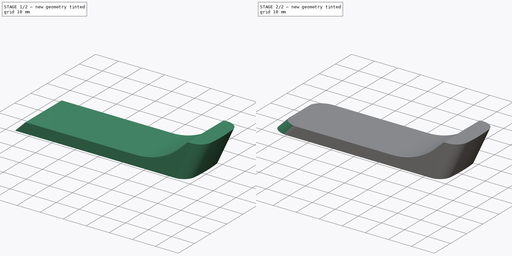
[diagram: build sequence overview — one tinted view per stage of 2, left to right]
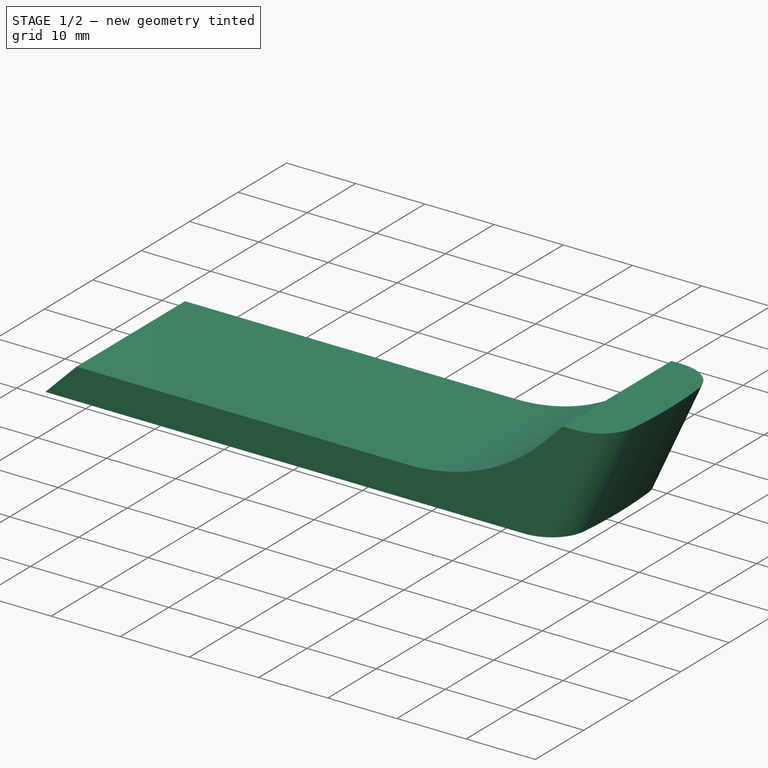
[diagram: stage 1 of 2 — iso view after this stage's code; geometry added in this stage tinted green]
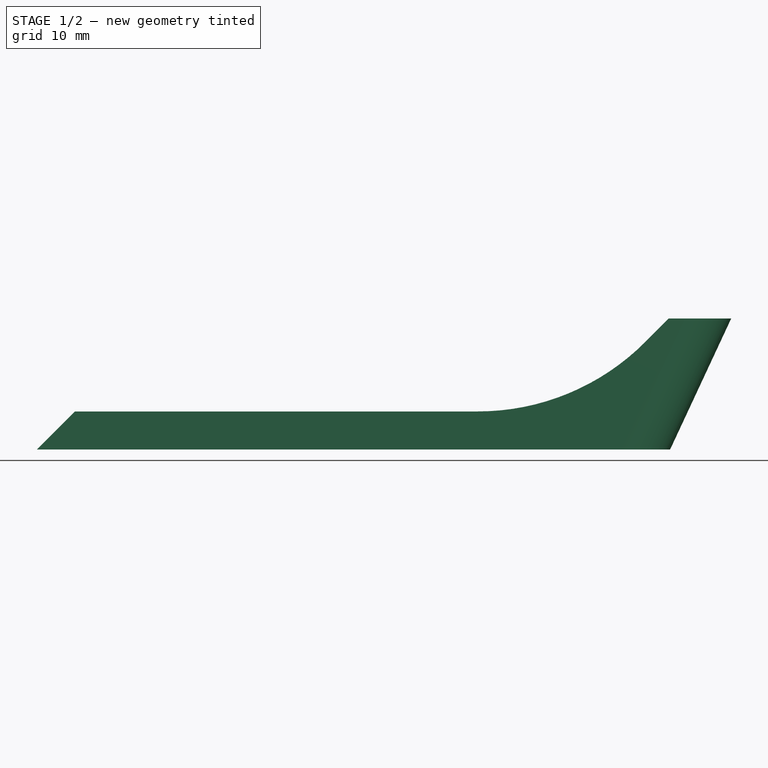
[diagram: stage 1 of 2 — front view after this stage's code; geometry added in this stage tinted green]
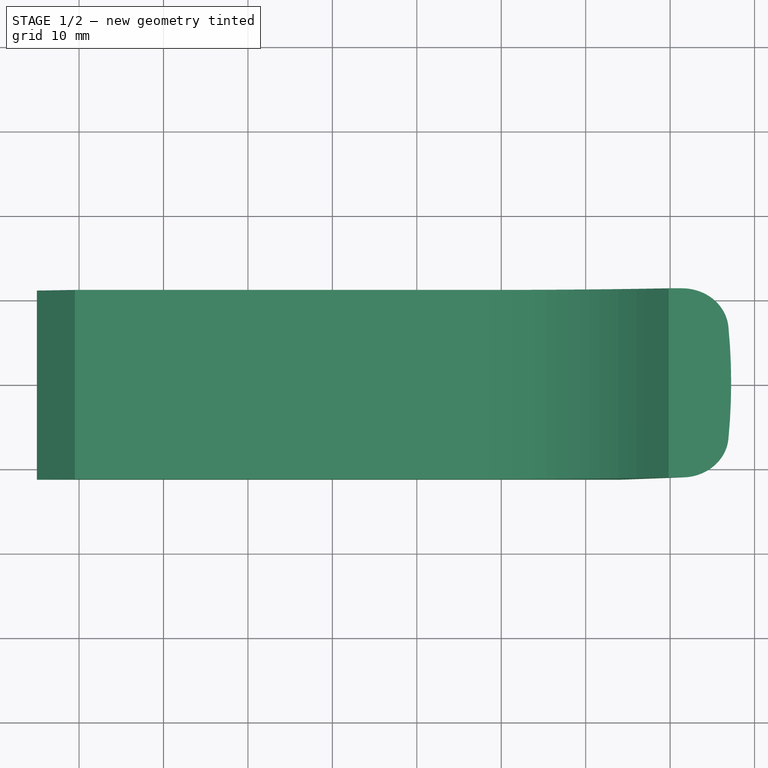
[diagram: stage 1 of 2 — top view after this stage's code; geometry added in this stage tinted green]
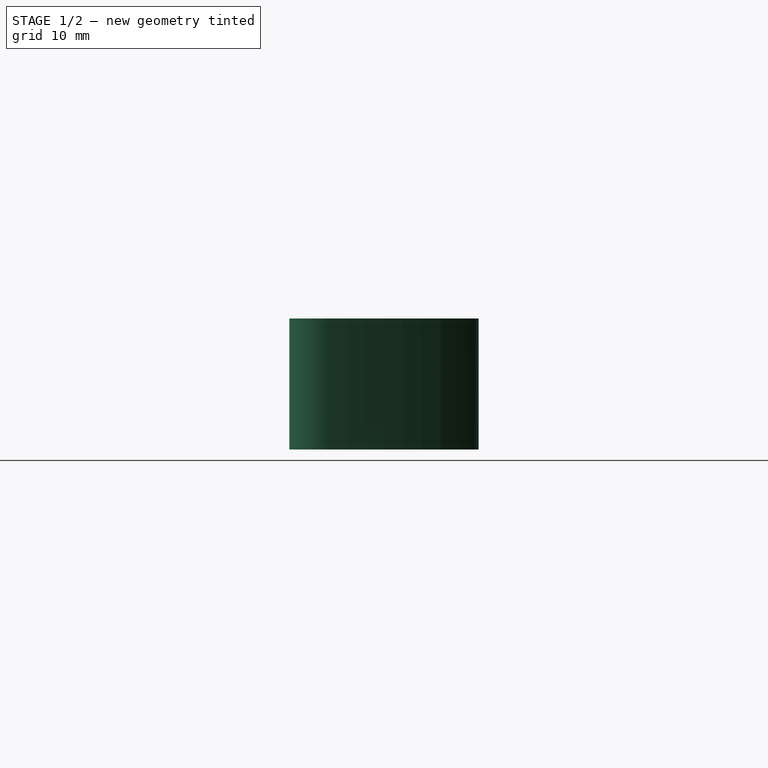
[diagram: stage 1 of 2 — right view after this stage's code; geometry added in this stage tinted green]
FCSTD DOCUMENT  (FreeCAD 0.20R29410 (Git))
Label: ShutterRemoteHanger
License: All rights reserved
LicenseURL: http://en.wikipedia.org/wiki/All_rights_reserved
objects: Sketcher::SketchObject×2, PartDesign::Pad×1, PartDesign::Plane×1, PartDesign::Pocket×1, PartDesign::Fillet×1, PartDesign::Body×1
note: 10 computed .brp shape members not serialized (recipe doc carries the construction recipe); baked Part::Feature solids carry a one-line shape summary decoded from their .brp

FEATURE [Sketcher::SketchObject] Sketch
  FullyConstrained = true
  MapMode = 5
  Placement = pos=(0,0,0) rot=(1,0,0;1.5708rad)
  Support = -> [XZ_Plane]
  sketch-geometry (7):
    g0: LineSegment StartX=-75 StartY=0 StartZ=0 EndX=0 EndY=0 EndZ=0
    g1: LineSegment StartX=0 StartY=0 StartZ=0 EndX=7.22777 EndY=15.5 EndZ=0
    g2: LineSegment StartX=7.22777 StartY=15.5 StartZ=0 EndX=-0.172231 EndY=15.5 EndZ=0
    g3: LineSegment StartX=-75 StartY=0 StartZ=0 EndX=-70.5 EndY=4.5 EndZ=0
    g4: LineSegment StartX=-70.5 StartY=4.5 StartZ=0 EndX=-22.7702 EndY=4.5 EndZ=0
    g5: ArcOfCircle CenterX=-22.7702 CenterY=32.5 CenterZ=0 NormalX=0 NormalY=0 NormalZ=1 AngleXU=0 Radius=28 StartAngle=4.71239 EndAngle=5.49779
    g6: LineSegment StartX=-2.97122 StartY=12.701 StartZ=0 EndX=-0.172231 EndY=15.5 EndZ=0
  constraints (19):
    c: Horizontal(g0)
    c: Coincident(g0,g1)
    c: Coincident(g1,g2)
    c: Horizontal(g2)
    c: Coincident(g0,g3)
    c: Coincident(g3,g4)
    c: Horizontal(g4)
    c: Angle(g0,g3) = 0.785398
    c: Tangent(g4,g5) = -1.5708
    c: Coincident(g6,g2)
    c: Tangent(g5,g6) = -1.5708
    c: Parallel(g3,g6)
    c: DistanceX(g2,g2) = 7.4
    c: DistanceY(g0,g3) = 4.5
    c: DistanceY(g0,g1) = 15.5
    c: Radius(g5) = 28
    c: DistanceX(g0,g0) = 75
    c: Coincident(g-1,g0)  '__##__'
    c: Angle(g1,g0) = 2.00713
FEATURE [PartDesign::Pad] Pad
  Direction = (0,-1,-2e-16)
  Length = 22.4
  Length2 = 10
  Midplane = true
  Placement = pos=(0,0,0) rot=(1,0,0;1.5708rad)
  Profile = -> Sketch
  ReferenceAxis = -> Sketch [N_Axis]
  Type = 0
FEATURE [PartDesign::Plane] DatumPlane
  Length = 61.5279
  MapMode = 14
  Placement = pos=(7.22777,11.2,15.5) rot=(0.211541,0.211541,0.954201;1.61766rad)
  ResizeMode = 0
  Support = -> [Pad]
  Width = 77.9742
FEATURE [Sketcher::SketchObject] Sketch001
  ExternalGeometry = -> [Sketch]
  FullyConstrained = true
  MapMode = 5
  Placement = pos=(7.22777,11.2,15.5) rot=(0.211541,0.211541,0.954201;1.61766rad)
  Support = -> [DatumPlane]
  expr: Constraints[10] = <<Pad>>.Length
  sketch-geometry (15):
    g0: LineSegment StartX=-22.4 StartY=6.70668 StartZ=0 EndX=2.84e-14 EndY=6.70668 EndZ=0
    g1: LineSegment StartX=2.84e-14 StartY=6.70668 StartZ=0 EndX=2.84e-14 EndY=-7.1e-15 EndZ=0
    g2: LineSegment StartX=2.84e-14 StartY=-7.1e-15 StartZ=0 EndX=-22.4 EndY=-7.1e-15 EndZ=0
    g3: LineSegment StartX=-22.4 StartY=-7.1e-15 StartZ=0 EndX=-22.4 EndY=6.70668 EndZ=0
    g4: LineSegment StartX=-22.4 StartY=6.70668 StartZ=0 EndX=-22.4 EndY=5.27511 EndZ=0
    g5: LineSegment StartX=2.84e-14 StartY=6.70668 StartZ=0 EndX=2.5002e-12 EndY=5.27511 EndZ=0
    g6: ArcOfCircle CenterX=-17.4 CenterY=5.27511 CenterZ=0 NormalX=0 NormalY=0 NormalZ=1 AngleXU=0 Radius=5 StartAngle=3.14159 EndAngle=4.6237
    g7: ArcOfCircle CenterX=-5 CenterY=5.27511 CenterZ=0 NormalX=0 NormalY=0 NormalZ=1 AngleXU=0 Radius=5 StartAngle=4.80108 EndAngle=6.28319
    g8: ArcOfCircle CenterX=-11.2 CenterY=75 CenterZ=0 NormalX=0 NormalY=0 NormalZ=1 AngleXU=0 Radius=75 StartAngle=4.6237 EndAngle=4.80108
    g9: LineSegment StartX=-22.4 StartY=6.70668 StartZ=0 EndX=-24.4 EndY=6.70668 EndZ=0
    g10: LineSegment StartX=-24.4 StartY=6.70668 StartZ=0 EndX=-24.4 EndY=-2 EndZ=0
    g11: LineSegment StartX=-24.4 StartY=-2 StartZ=0 EndX=2 EndY=-2 EndZ=0
    g12: LineSegment StartX=2.84e-14 StartY=6.70668 StartZ=0 EndX=2 EndY=6.70668 EndZ=0
    g13: LineSegment StartX=2 StartY=6.70668 StartZ=0 EndX=2 EndY=-2 EndZ=0
    g14: LineSegment StartX=-22.4 StartY=-7.1e-15 StartZ=0 EndX=-22.4 EndY=-2 EndZ=0
  constraints (41):
    c: Coincident(g0,g1)
    c: Coincident(g1,g2)
    c: Coincident(g2,g3)
    c: Coincident(g3,g0)
    c: Horizontal(g0)
    c: Horizontal(g2)
    c: Vertical(g1)
    c: Vertical(g3)
    c: PointOnObject(g-3,g0)
    c: Symmetric(g2,g1,g-3)
    c: DistanceX(g0,g0) = 22.4
    c: Coincident(g4,g0)
    c: PointOnObject(g4,g3)
    c: Coincident(g5,g0)
    c: PointOnObject(g5,g1)
    c: Equal(g4,g5)
    c: Tangent(g5,g7) = 1.5708
    c: Tangent(g4,g6) = -1.5708
    c: Equal(g6,g7)
    c: Tangent(g7,g8) = -1.5708
    c: Tangent(g6,g8) = -1.5708
    c: Tangent(g8,g2)
    c: Radius(g6) = 5
    c: Radius(g8) = 75
    c: Coincident(g9,g4)
    c: Horizontal(g9)
    c: Coincident(g10,g9)
    c: Vertical(g10)
    c: Coincident(g11,g10)
    c: Horizontal(g11)
    c: Coincident(g12,g5)
    c: Coincident(g13,g12)
    c: Coincident(g13,g11)
    c: Vertical(g13)
    c: Equal(g9,g12)
    c: Horizontal(g12)
    c: DistanceX(g9,g9) = 2
    c: Coincident(g14,g2)
    c: PointOnObject(g14,g11)
    c: Vertical(g14)
    c: Equal(g14,g9)
FEATURE [PartDesign::Pocket] Pocket
  BaseFeature = -> Pad
  Direction = (-0.422618,1e-16,-0.906308)
  Length = 5
  Length2 = 5
  Placement = pos=(0,0,0) rot=(1,0,0;1.5708rad)
  Profile = -> Sketch001
  ReferenceAxis = -> Sketch001 [N_Axis]
  Type = 1
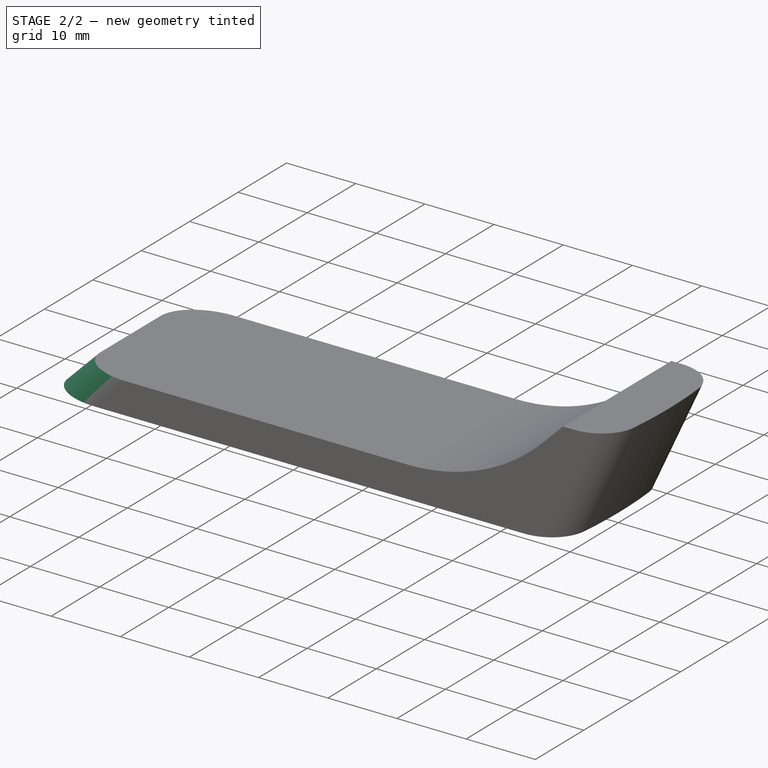
[diagram: stage 2 of 2 — iso view after this stage's code; geometry added in this stage tinted green]
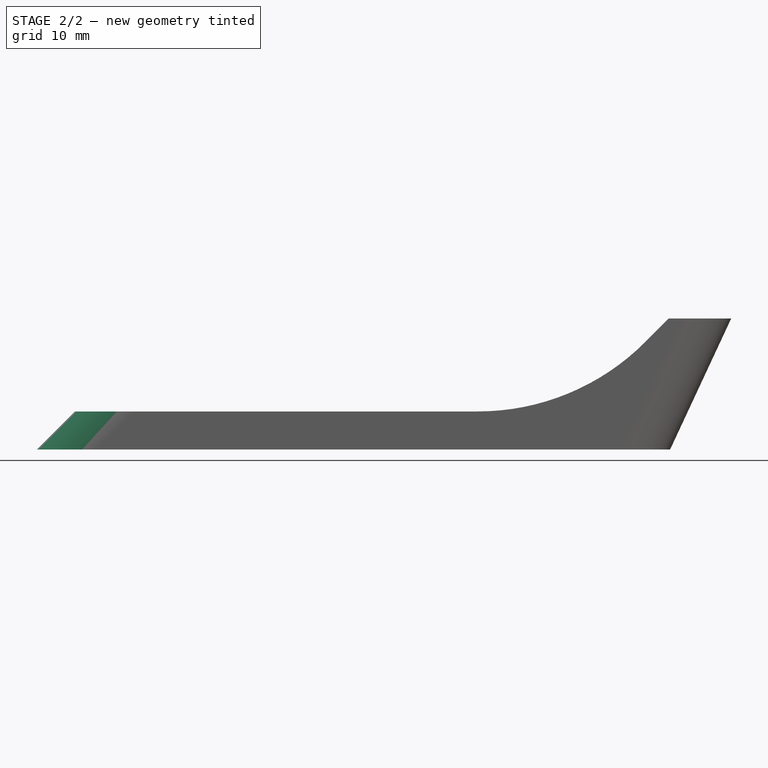
[diagram: stage 2 of 2 — front view after this stage's code; geometry added in this stage tinted green]
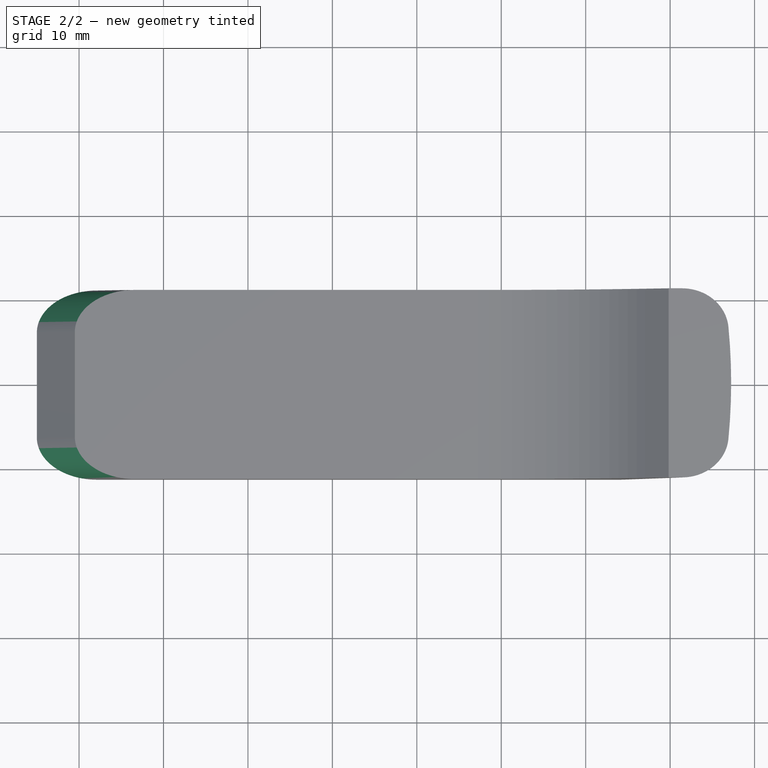
[diagram: stage 2 of 2 — top view after this stage's code; geometry added in this stage tinted green]
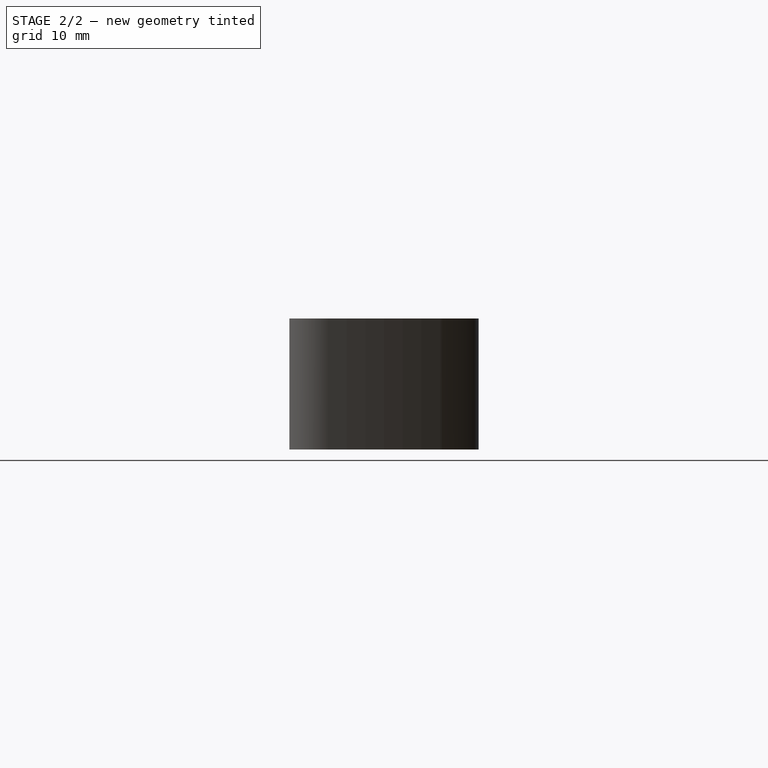
[diagram: stage 2 of 2 — right view after this stage's code; geometry added in this stage tinted green]
FEATURE [PartDesign::Fillet] Fillet
  Base = -> Pocket [Edge30,Edge14]
  BaseFeature = -> Pocket
  Placement = pos=(0,0,0) rot=(1,0,0;1.5708rad)
  Radius = 5
  SupportTransform = false
  UseAllEdges = false
FEATURE [PartDesign::Body] Body
  Group = -> [Sketch,Pad,DatumPlane,Sketch001,Pocket,Fillet]
  Origin = -> Origin
  Tip = -> Fillet
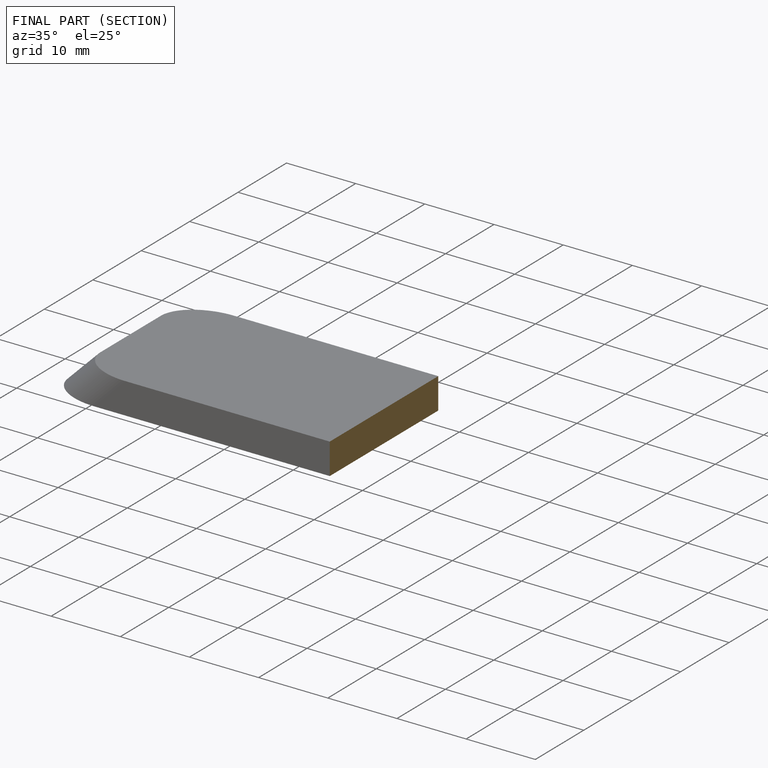
[diagram: finished part — half-section view (interior)]
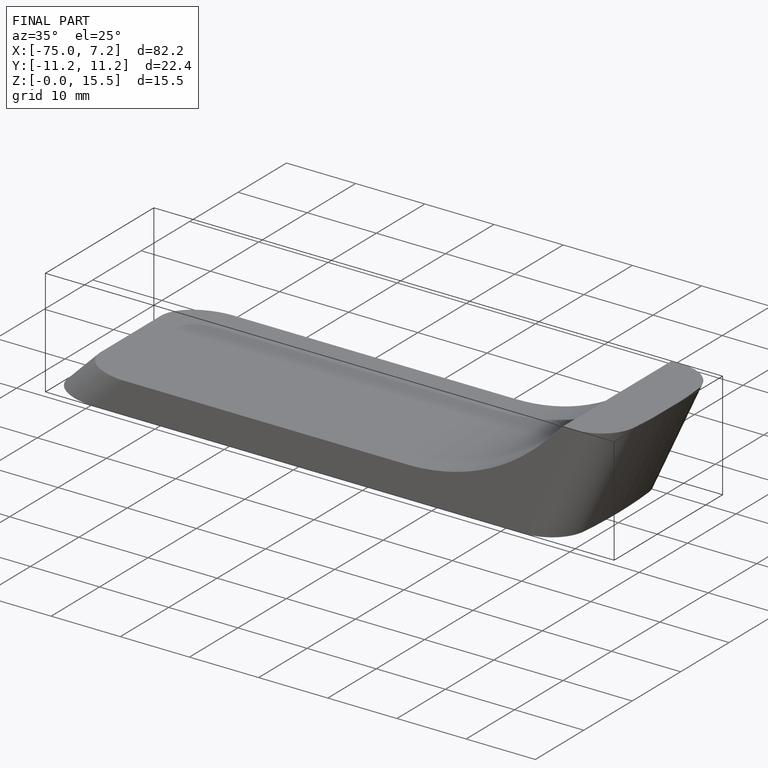
[diagram: finished part — iso view with bounding-box wireframe]
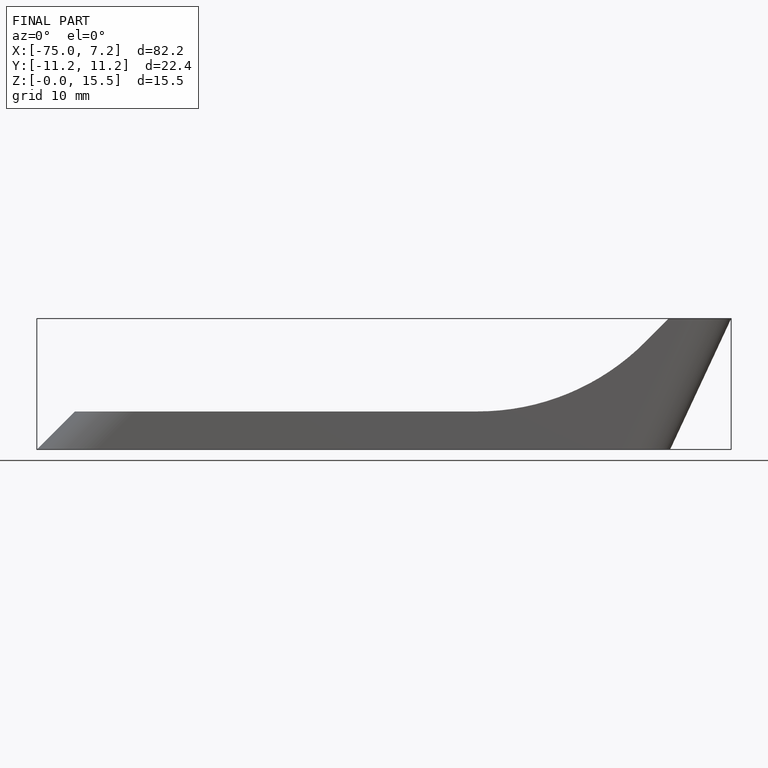
[diagram: finished part — front view with bounding-box wireframe]
